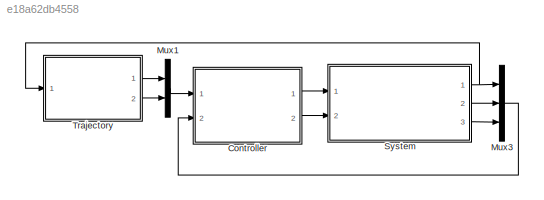
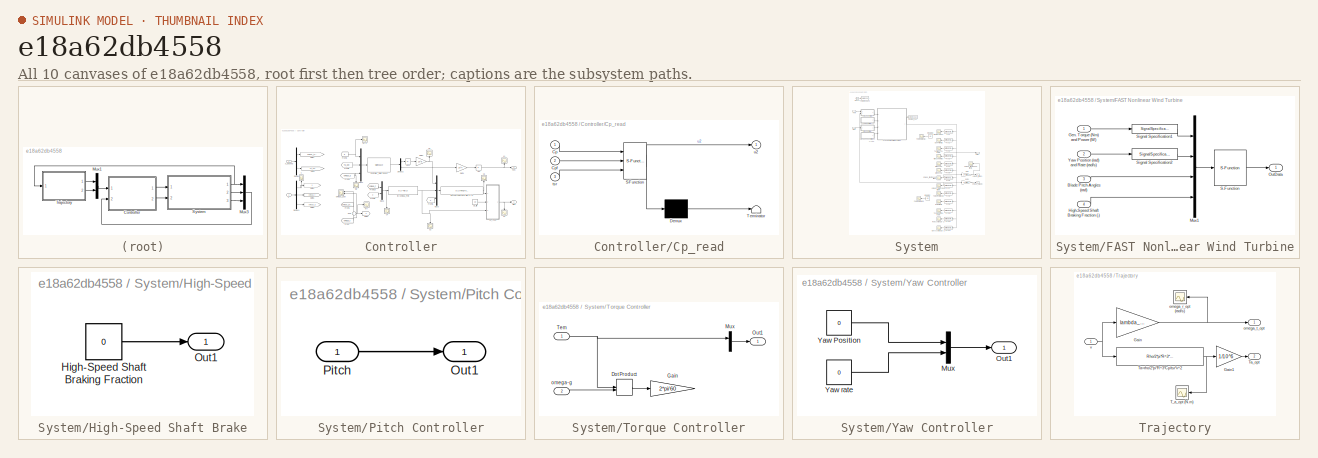
[diagram: thumbnail index - all 10 canvases of the model, root first then tree order]
MODEL slx_e18a62db4558
KIND model
CONFIG AbsTol = auto
CONFIG FixedStep = 0.0001
CONFIG MaxStep = auto
CONFIG MinStep = auto
CONFIG RelTol = 1e-6
CONFIG SampleTimeConstraint = Unconstrained
CONFIG Solver = VariableStepAuto
CONFIG SolverMode = Auto
CONFIG SolverName = VariableStepAuto
CONFIG StartTime = 0.0
CONFIG StopTime = 100
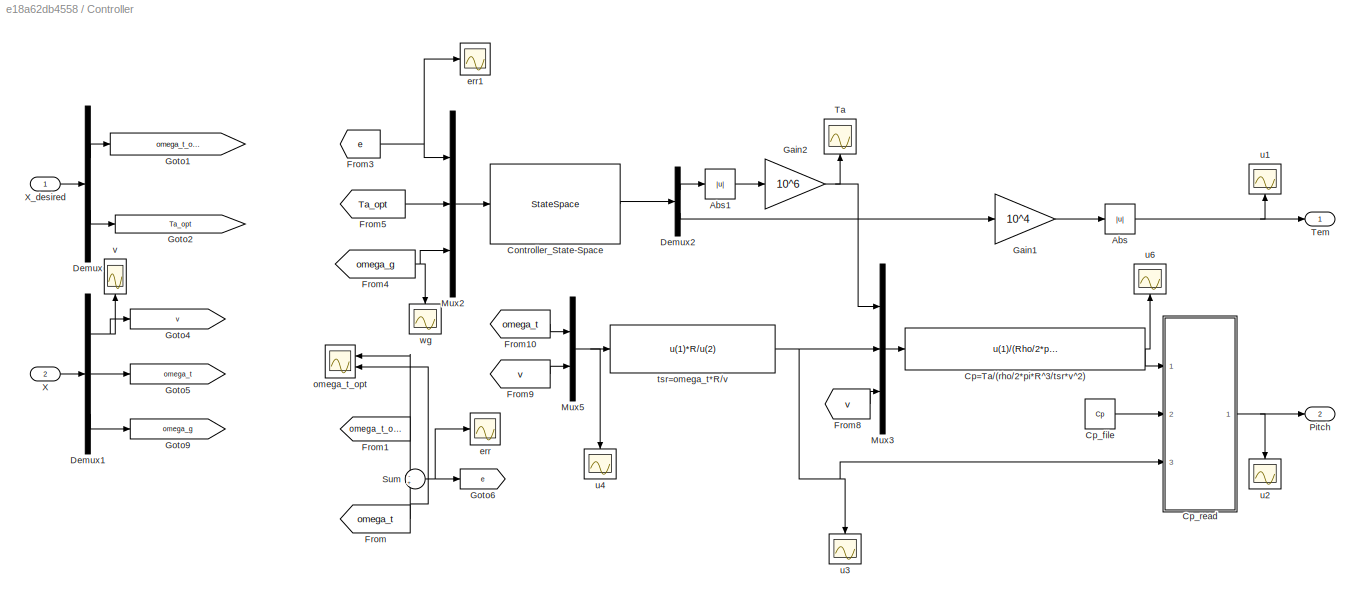
BLOCK [SubSystem] Controller
  Ports = [2, 2]
  RequestExecContextInheritance = off
  Variant = off
BLOCK [Abs] Controller/Abs
  SaturateOnIntegerOverflow = off
BLOCK [Abs] Controller/Abs1
  SaturateOnIntegerOverflow = off
BLOCK [StateSpace] Controller/Controller_State-Space
  A = A
  B = B
  C = C
  D = D
  Ports = [1, 1]
  X0 = 0
BLOCK [Fcn] Controller/Cp=Ta//(rho//2*pi*R^3//tsr*v^2)
  Expr = u(1)/(Rho/2*pi*R^3/u(2)*u(3)^2)
BLOCK [Constant] Controller/Cp_file
  Value = Cp
BLOCK [SubSystem] Controller/Cp_read
  ErrorFcn = Stateflow.Translate.translate
  PermitHierarchicalResolution = ExplicitOnly
  Ports = [3, 1]
  RequestExecContextInheritance = off
  SFBlockType = MATLAB Function
  TreatAsAtomicUnit = on
  Variant = off
BLOCK [Demux] Controller/Cp_read/ Demux 
  Outputs = 1
  Ports = [1, 1]
BLOCK [S-Function] Controller/Cp_read/ SFunction 
  EnableBusSupport = on
  FunctionName = sf_sfun
  PortCounts = [3 2]
  Ports = [3, 2]
  SFunctionDeploymentMode = off
  Tag = Stateflow S-Function Closedloop 1
BLOCK [Terminator] Controller/Cp_read/ Terminator 
BLOCK [Inport] Controller/Cp_read/Cp
  IconDisplay = Port number
BLOCK [Inport] Controller/Cp_read/Cpf
  IconDisplay = Port number
  Port = 2
BLOCK [Inport] Controller/Cp_read/tsr
  IconDisplay = Port number
  Port = 3
BLOCK [Outport] Controller/Cp_read/u2
  IconDisplay = Port number
BLOCK [Demux] Controller/Demux
  DisplayOption = bar
  Outputs = 2
  Ports = [1, 2]
BLOCK [Demux] Controller/Demux1
  DisplayOption = bar
  Outputs = 3
  Ports = [1, 3]
BLOCK [Demux] Controller/Demux2
  DisplayOption = bar
  Outputs = 2
  Ports = [1, 2]
BLOCK [From] Controller/From
  GotoTag = omega_t
BLOCK [From] Controller/From1
  GotoTag = omega_t_opt
BLOCK [From] Controller/From10
  GotoTag = omega_t
BLOCK [From] Controller/From3
  GotoTag = e
BLOCK [From] Controller/From4
  GotoTag = omega_g
BLOCK [From] Controller/From5
  GotoTag = Ta_opt
BLOCK [From] Controller/From8
  GotoTag = v
BLOCK [From] Controller/From9
  GotoTag = v
BLOCK [Gain] Controller/Gain1
  Gain = 10^4
  OutDataTypeStr = Inherit: Inherit via internal rule
  ParamDataTypeStr = Inherit: Inherit via internal rule
  SaturateOnIntegerOverflow = off
BLOCK [Gain] Controller/Gain2
  Gain = 10^6
  OutDataTypeStr = Inherit: Inherit via internal rule
  ParamDataTypeStr = Inherit: Inherit via internal rule
  SaturateOnIntegerOverflow = off
BLOCK [Goto] Controller/Goto1
  GotoTag = omega_t_opt
BLOCK [Goto] Controller/Goto2
  GotoTag = Ta_opt
BLOCK [Goto] Controller/Goto4
  GotoTag = v
BLOCK [Goto] Controller/Goto5
  GotoTag = omega_t
BLOCK [Goto] Controller/Goto6
  GotoTag = e
BLOCK [Goto] Controller/Goto9
  GotoTag = omega_g
BLOCK [Mux] Controller/Mux2
  DisplayOption = bar
  Inputs = 3
  Ports = [3, 1]
BLOCK [Mux] Controller/Mux3
  DisplayOption = bar
  Inputs = 3
  Ports = [3, 1]
BLOCK [Mux] Controller/Mux5
  DisplayOption = bar
  Inputs = 2
  Ports = [2, 1]
BLOCK [Outport] Controller/Pitch
  IconDisplay = Port number
  Port = 2
BLOCK [Sum] Controller/Sum
  IconShape = round
  InputSameDT = off
  Inputs = -+
  OutDataTypeStr = Inherit: Inherit via internal rule
  Ports = [2, 1]
  SaturateOnIntegerOverflow = off
BLOCK [Scope] Controller/Ta
  Ports = [1]
  ScopeSpecificationString = Simulink.scopes.TimeScopeBlockCfg('CurrentConfiguration', extmgr.ConfigurationSet(extmgr.Configuration('Core','General UI',true,'FigureColor',[1 1 1]),extmgr.Configuration('Core','Source UI',true),extmgr.Configuration('Sources','WiredSimulink',true,'DataLoggingSaveFormat','StructureWithTime','DataLoggingDecimation','1','DataLoggingDecimateData',true,'DataLoggingVariableName','ScopeData2'),extmgr.C...<+2193ch>
BLOCK [Outport] Controller/Tem
  IconDisplay = Port number
BLOCK [Inport] Controller/X
  IconDisplay = Port number
  Port = 2
BLOCK [Inport] Controller/X_desired
  IconDisplay = Port number
BLOCK [Scope] Controller/err
  Ports = [1]
  ScopeSpecificationString = Simulink.scopes.TimeScopeBlockCfg('CurrentConfiguration', extmgr.ConfigurationSet(extmgr.Configuration('Core','General UI',true,'FigureColor',[1 1 1]),extmgr.Configuration('Core','Source UI',true),extmgr.Configuration('Sources','WiredSimulink',true,'DataLoggingSaveFormat','StructureWithTime','DataLoggingDecimation','1','DataLoggingDecimateData',true,'DataLoggingVariableName','ScopeData3'),extmgr.C...<+2134ch>
BLOCK [Scope] Controller/err1
  Ports = [1]
  ScopeSpecificationString = Simulink.scopes.TimeScopeBlockCfg('CurrentConfiguration', extmgr.ConfigurationSet(extmgr.Configuration('Core','General UI',true,'FigureColor',[1 1 1]),extmgr.Configuration('Core','Source UI',true),extmgr.Configuration('Sources','WiredSimulink',true,'DataLoggingSaveFormat','StructureWithTime','DataLoggingDecimation','1','DataLoggingDecimateData',true,'DataLoggingVariableName','ScopeData2'),extmgr.C...<+2134ch>
BLOCK [Scope] Controller/omega_t_opt
  NumInputPorts = 2
  Ports = [2]
  ScopeSpecificationString = Simulink.scopes.TimeScopeBlockCfg('CurrentConfiguration', extmgr.ConfigurationSet(extmgr.Configuration('Core','General UI',true,'FigureColor',[1 1 1]),extmgr.Configuration('Core','Source UI',true),extmgr.Configuration('Sources','WiredSimulink',true,'DataLoggingVariableName','ScopeData2','DataLoggingSaveFormat','Array','DataLoggingDecimation','1','DataLoggingDecimateData',true),extmgr.Configuration...<+2068ch>
BLOCK [Fcn] Controller/tsr=omega_t*R//v
  Expr = u(1)*R/u(2)
BLOCK [Scope] Controller/u1
  Ports = [1]
  ScopeSpecificationString = Simulink.scopes.TimeScopeBlockCfg('CurrentConfiguration', extmgr.ConfigurationSet(extmgr.Configuration('Core','General UI',true,'FigureColor',[1 1 1]),extmgr.Configuration('Core','Source UI',true),extmgr.Configuration('Sources','WiredSimulink',true,'DataLoggingSaveFormat','StructureWithTime','DataLoggingDecimation','1','DataLoggingDecimateData',true,'DataLoggingVariableName','ScopeData3'),extmgr.C...<+2148ch>
BLOCK [Scope] Controller/u2
  Ports = [1]
  ScopeSpecificationString = Simulink.scopes.TimeScopeBlockCfg('CurrentConfiguration', extmgr.ConfigurationSet(extmgr.Configuration('Core','General UI',true,'FigureColor',[1 1 1]),extmgr.Configuration('Core','Source UI',true),extmgr.Configuration('Sources','WiredSimulink',true,'DataLoggingSaveFormat','StructureWithTime','DataLoggingDecimation','1','DataLoggingDecimateData',true,'DataLoggingVariableName','ScopeData1'),extmgr.C...<+2186ch>
BLOCK [Scope] Controller/u3
  Ports = [1]
  ScopeSpecificationString = Simulink.scopes.TimeScopeBlockCfg('CurrentConfiguration', extmgr.ConfigurationSet(extmgr.Configuration('Core','General UI',true),extmgr.Configuration('Core','Source UI',true),extmgr.Configuration('Sources','WiredSimulink',true,'DataLoggingVariableName','ScopeData1'),extmgr.Configuration('Visuals','Time Domain',true,'SerializedDisplays',{struct('MinYLimReal','7.26839','MaxYLimReal','10.83018','YLab...<+1401ch>
BLOCK [Scope] Controller/u4
  Ports = [1]
  ScopeSpecificationString = Simulink.scopes.TimeScopeBlockCfg('CurrentConfiguration', extmgr.ConfigurationSet(extmgr.Configuration('Core','General UI',true),extmgr.Configuration('Core','Source UI',true),extmgr.Configuration('Sources','WiredSimulink',true,'DataLoggingVariableName','ScopeData2'),extmgr.Configuration('Visuals','Time Domain',true,'SerializedDisplays',{struct('MinYLimReal','0.84053','MaxYLimReal','7.68439','YLabe...<+1430ch>
BLOCK [Scope] Controller/u6
  Ports = [1]
  ScopeSpecificationString = Simulink.scopes.TimeScopeBlockCfg('CurrentConfiguration', extmgr.ConfigurationSet(extmgr.Configuration('Core','General UI',true),extmgr.Configuration('Core','Source UI',true),extmgr.Configuration('Sources','WiredSimulink',true,'DataLoggingVariableName','ScopeData2'),extmgr.Configuration('Visuals','Time Domain',true,'SerializedDisplays',{struct('MinYLimReal','-22.38184','MaxYLimReal','8.39743','YLa...<+1445ch>
BLOCK [Scope] Controller/v
  Ports = [1]
  ScopeSpecificationString = Simulink.scopes.TimeScopeBlockCfg('CurrentConfiguration', extmgr.ConfigurationSet(extmgr.Configuration('Core','General UI',true,'FigureColor',[1 1 1]),extmgr.Configuration('Core','Source UI',true),extmgr.Configuration('Sources','WiredSimulink',true,'DataLoggingSaveFormat','StructureWithTime','DataLoggingDecimation','1','DataLoggingDecimateData',true,'DataLoggingVariableName','ScopeData2'),extmgr.C...<+1810ch>
BLOCK [Scope] Controller/wg
  Ports = [1]
  ScopeSpecificationString = Simulink.scopes.TimeScopeBlockCfg('CurrentConfiguration', extmgr.ConfigurationSet(extmgr.Configuration('Core','General UI',true),extmgr.Configuration('Core','Source UI',true),extmgr.Configuration('Sources','WiredSimulink',true,'DataLoggingVariableName','ScopeData3'),extmgr.Configuration('Visuals','Time Domain',true,'SerializedDisplays',{struct('MinYLimReal','-72.1723','MaxYLimReal','212.72299','YL...<+1792ch>
BLOCK [Mux] Mux1
  DisplayOption = bar
  Inputs = 2
  Ports = [2, 1]
BLOCK [Mux] Mux3
  DisplayOption = bar
  Inputs = 3
  Ports = [3, 1]
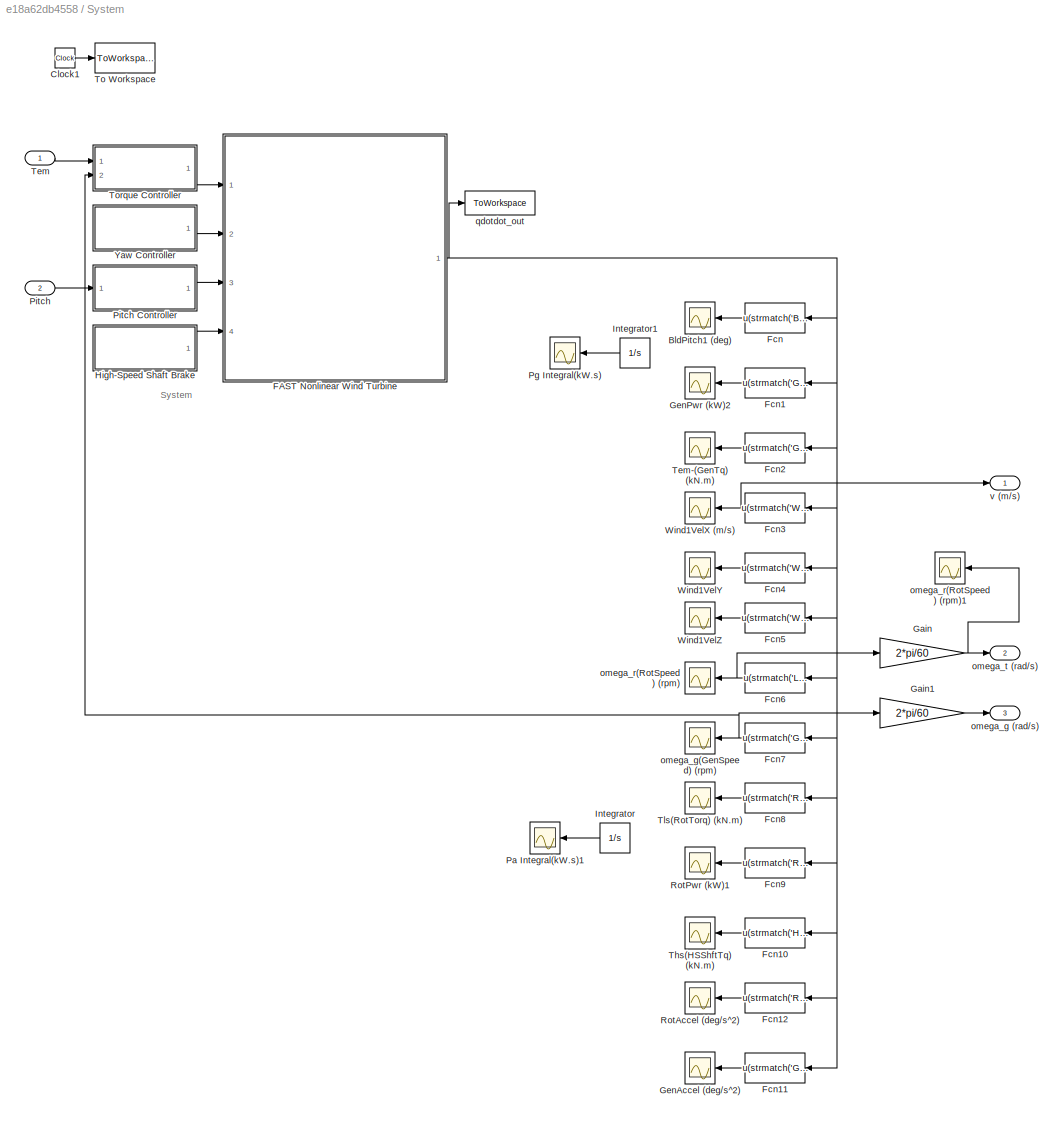
BLOCK [SubSystem] System
  Ports = [2, 3]
  RequestExecContextInheritance = off
  Variant = off
BLOCK [Scope] System/BldPitch1 (deg)
  Ports = [1]
  ScopeSpecificationString = Simulink.scopes.TimeScopeBlockCfg('CurrentConfiguration', extmgr.ConfigurationSet(extmgr.Configuration('Core','General UI',true,'FigureColor',[1 1 1]),extmgr.Configuration('Core','Source UI',true),extmgr.Configuration('Sources','WiredSimulink',true,'DataLoggingSaveFormat','StructureWithTime','DataLoggingDecimation','1','DataLoggingDecimateData',true,'DataLoggingVariableName','ScopeData5'),extmgr.C...<+2092ch>
BLOCK [Clock] System/Clock1
BLOCK [SubSystem] System/FAST Nonlinear Wind Turbine
  Ports = [4, 1]
  RequestExecContextInheritance = off
  Variant = off
BLOCK [Inport] System/FAST Nonlinear Wind Turbine/Blade Pitch Angles (rad)
  IconDisplay = Port number
  Port = 3
BLOCK [Inport] System/FAST Nonlinear Wind Turbine/Gen. Torque (Nm) and Power (W)
  IconDisplay = Port number
BLOCK [Inport] System/FAST Nonlinear Wind Turbine/High-Speed Shaft Braking Fraction (-)
  IconDisplay = Port number
  Port = 4
BLOCK [Mux] System/FAST Nonlinear Wind Turbine/Mux1
  DisplayOption = bar
  Ports = [4, 1]
BLOCK [Outport] System/FAST Nonlinear Wind Turbine/OutData
  IconDisplay = Port number
BLOCK [S-Function] System/FAST Nonlinear Wind Turbine/S-Function
  EnableBusSupport = off
  FunctionName = FAST_SFunc
  Parameters = FAST_InputFileName, TMax, 0
  Ports = [1, 1]
  SFunctionDeploymentMode = off
BLOCK [SignalSpecification] System/FAST Nonlinear Wind Turbine/Signal Specification1
  Dimensions = 2
  OutDataTypeStr = double
  SignalType = real
BLOCK [SignalSpecification] System/FAST Nonlinear Wind Turbine/Signal Specification2
  Dimensions = 2
  OutDataTypeStr = double
  SignalType = real
BLOCK [Inport] System/FAST Nonlinear Wind Turbine/Yaw Position (rad) and Rate (rad//s)
  IconDisplay = Port number
  Port = 2
BLOCK [Fcn] System/Fcn
  Expr = u(strmatch('BldPitch1',OutList))
BLOCK [Fcn] System/Fcn1
  Expr = u(strmatch('GenPwr',OutList))
BLOCK [Fcn] System/Fcn10
  Expr = u(strmatch('HSShftTq',OutList))
BLOCK [Fcn] System/Fcn11
  Expr = u(strmatch('GenAccel',OutList))
BLOCK [Fcn] System/Fcn12
  Expr = u(strmatch('RotAccel',OutList))
BLOCK [Fcn] System/Fcn2
  Expr = u(strmatch('GenTq',OutList))
BLOCK [Fcn] System/Fcn3
  Expr = u(strmatch('Wind1VelX',OutList))
BLOCK [Fcn] System/Fcn4
  Expr = u(strmatch('Wind1VelY',OutList))
BLOCK [Fcn] System/Fcn5
  Expr = u(strmatch('Wind1VelZ',OutList))
BLOCK [Fcn] System/Fcn6
  Expr = u(strmatch('LSSTipVxa',OutList))
BLOCK [Fcn] System/Fcn7
  Expr = u(strmatch('GenSpeed',OutList))
BLOCK [Fcn] System/Fcn8
  Expr = u(strmatch('RotTorq',OutList))
BLOCK [Fcn] System/Fcn9
  Expr = u(strmatch('RotPwr',OutList))
BLOCK [Gain] System/Gain
  Gain = 2*pi/60
  OutDataTypeStr = Inherit: Inherit via internal rule
  ParamDataTypeStr = Inherit: Inherit via internal rule
  SaturateOnIntegerOverflow = off
BLOCK [Gain] System/Gain1
  Gain = 2*pi/60
  OutDataTypeStr = Inherit: Inherit via internal rule
  ParamDataTypeStr = Inherit: Inherit via internal rule
  SaturateOnIntegerOverflow = off
BLOCK [Scope] System/GenAccel (deg//s^2)
  Ports = [1]
  ScopeSpecificationString = Simulink.scopes.TimeScopeBlockCfg('CurrentConfiguration', extmgr.ConfigurationSet(extmgr.Configuration('Core','General UI',true),extmgr.Configuration('Core','Source UI',true),extmgr.Configuration('Sources','WiredSimulink',true,'DataLoggingSaveFormat','StructureWithTime','DataLoggingDecimation','1','DataLoggingDecimateData',true,'DataLoggingVariableName','ScopeData2'),extmgr.Configuration('Visuals'...<+1955ch>
BLOCK [Scope] System/GenPwr (kW)2
  Ports = [1]
  ScopeSpecificationString = Simulink.scopes.TimeScopeBlockCfg('CurrentConfiguration', extmgr.ConfigurationSet(extmgr.Configuration('Core','General UI',true,'FigureColor',[1 1 1]),extmgr.Configuration('Core','Source UI',true),extmgr.Configuration('Sources','WiredSimulink',true,'DataLoggingSaveFormat','StructureWithTime','DataLoggingDecimation','1','DataLoggingDecimateData',true,'DataLoggingVariableName','ScopeData7'),extmgr.C...<+1853ch>
BLOCK [SubSystem] System/High-Speed Shaft Brake
  Ports = [0, 1]
  RequestExecContextInheritance = off
  Variant = off
BLOCK [Constant] System/High-Speed Shaft Brake/High-Speed Shaft Braking Fraction
  Value = 0
BLOCK [Outport] System/High-Speed Shaft Brake/Out1
  IconDisplay = Port number
BLOCK [Integrator] System/Integrator
  Ports = [1, 1]
BLOCK [Integrator] System/Integrator1
  Ports = [1, 1]
BLOCK [Scope] System/Pa Integral(kW.s)1
  Ports = [1]
  ScopeSpecificationString = Simulink.scopes.TimeScopeBlockCfg('CurrentConfiguration', extmgr.ConfigurationSet(extmgr.Configuration('Core','General UI',true,'FigureColor',[1 1 1]),extmgr.Configuration('Core','Source UI',true),extmgr.Configuration('Sources','WiredSimulink',true,'DataLoggingSaveFormat','StructureWithTime','DataLoggingDecimation','1','DataLoggingDecimateData',true,'DataLoggingVariableName','ScopeData1'),extmgr.C...<+2147ch>
BLOCK [Scope] System/Pg Integral(kW.s)
  Ports = [1]
  ScopeSpecificationString = Simulink.scopes.TimeScopeBlockCfg('CurrentConfiguration', extmgr.ConfigurationSet(extmgr.Configuration('Core','General UI',true,'FigureColor',[1 1 1]),extmgr.Configuration('Core','Source UI',true),extmgr.Configuration('Sources','WiredSimulink',true,'DataLoggingSaveFormat','StructureWithTime','DataLoggingDecimation','1','DataLoggingDecimateData',true,'DataLoggingVariableName','ScopeData3'),extmgr.C...<+2185ch>
BLOCK [Inport] System/Pitch
  IconDisplay = Port number
  Port = 2
BLOCK [SubSystem] System/Pitch Controller
  Ports = [1, 1]
  RequestExecContextInheritance = off
  Variant = off
BLOCK [Outport] System/Pitch Controller/Out1
  IconDisplay = Port number
BLOCK [Inport] System/Pitch Controller/Pitch
  IconDisplay = Port number
BLOCK [Scope] System/RotAccel (deg//s^2)
  Ports = [1]
  ScopeSpecificationString = Simulink.scopes.TimeScopeBlockCfg('CurrentConfiguration', extmgr.ConfigurationSet(extmgr.Configuration('Core','General UI',true),extmgr.Configuration('Core','Source UI',true),extmgr.Configuration('Sources','WiredSimulink',true,'DataLoggingSaveFormat','StructureWithTime','DataLoggingLimitDataPoints',true,'DataLoggingDecimation','1','DataLoggingDecimateData',true,'DataLoggingVariableName','ScopeData...<+2011ch>
BLOCK [Scope] System/RotPwr (kW)1
  Ports = [1]
  ScopeSpecificationString = Simulink.scopes.TimeScopeBlockCfg('CurrentConfiguration', extmgr.ConfigurationSet(extmgr.Configuration('Core','General UI',true,'FigureColor',[1 1 1]),extmgr.Configuration('Core','Source UI',true),extmgr.Configuration('Sources','WiredSimulink',true,'DataLoggingSaveFormat','StructureWithTime','DataLoggingDecimation','1','DataLoggingDecimateData',true,'DataLoggingVariableName','ScopeData4'),extmgr.C...<+1847ch>
BLOCK [Inport] System/Tem
  IconDisplay = Port number
BLOCK [Scope] System/Tem-(GenTq) (kN.m)
  Ports = [1]
  ScopeSpecificationString = Simulink.scopes.TimeScopeBlockCfg('CurrentConfiguration', extmgr.ConfigurationSet(extmgr.Configuration('Core','General UI',true),extmgr.Configuration('Core','Source UI',true),extmgr.Configuration('Sources','WiredSimulink',true,'DataLoggingSaveFormat','StructureWithTime','DataLoggingDecimation','1','DataLoggingDecimateData',true,'DataLoggingVariableName','ScopeData8'),extmgr.Configuration('Visuals'...<+2000ch>
BLOCK [Scope] System/Ths(HSShftTq) (kN.m)
  Ports = [1]
  ScopeSpecificationString = Simulink.scopes.TimeScopeBlockCfg('CurrentConfiguration', extmgr.ConfigurationSet(extmgr.Configuration('Core','General UI',true),extmgr.Configuration('Core','Source UI',true),extmgr.Configuration('Sources','WiredSimulink',true,'DataLoggingSaveFormat','StructureWithTime','DataLoggingDecimation','1','DataLoggingDecimateData',true,'DataLoggingVariableName','ScopeData9'),extmgr.Configuration('Visuals'...<+2003ch>
BLOCK [Scope] System/Tls(RotTorq) (kN.m)
  Ports = [1]
  ScopeSpecificationString = Simulink.scopes.TimeScopeBlockCfg('CurrentConfiguration', extmgr.ConfigurationSet(extmgr.Configuration('Core','General UI',true),extmgr.Configuration('Core','Source UI',true),extmgr.Configuration('Sources','WiredSimulink',true,'DataLoggingSaveFormat','StructureWithTime','DataLoggingDecimation','1','DataLoggingDecimateData',true,'DataLoggingVariableName','ScopeData10'),extmgr.Configuration('Visuals...<+2034ch>
BLOCK [ToWorkspace] System/To Workspace
  MaxDataPoints = inf
  Ports = [1]
  SampleTime = -1
  VariableName = Time
BLOCK [SubSystem] System/Torque Controller
  Ports = [2, 1]
  RequestExecContextInheritance = off
  Variant = off
BLOCK [DotProduct] System/Torque Controller/Dot Product
  OutDataTypeStr = Inherit: Inherit via internal rule
BLOCK [Gain] System/Torque Controller/Gain
  Gain = 2*pi/60
  OutDataTypeStr = Inherit: Inherit via internal rule
  ParamDataTypeStr = Inherit: Inherit via internal rule
  SaturateOnIntegerOverflow = off
BLOCK [Mux] System/Torque Controller/Mux
  DisplayOption = bar
  Inputs = 2
  Ports = [2, 1]
BLOCK [Outport] System/Torque Controller/Out1
  IconDisplay = Port number
BLOCK [Inport] System/Torque Controller/Tem
  IconDisplay = Port number
BLOCK [Inport] System/Torque Controller/omega-g
  IconDisplay = Port number
  Port = 2
BLOCK [Scope] System/Wind1VelX (m//s)
  Ports = [1]
  ScopeSpecificationString = Simulink.scopes.TimeScopeBlockCfg('CurrentConfiguration', extmgr.ConfigurationSet(extmgr.Configuration('Core','General UI',true,'FigureColor',[1 1 1]),extmgr.Configuration('Core','Source UI',true),extmgr.Configuration('Sources','WiredSimulink',true,'DataLoggingSaveFormat','StructureWithTime','DataLoggingDecimation','1','DataLoggingDecimateData',true,'DataLoggingVariableName','ScopeData11'),extmgr....<+1688ch>
BLOCK [Scope] System/Wind1VelY
  Ports = [1]
  ScopeSpecificationString = Simulink.scopes.TimeScopeBlockCfg('CurrentConfiguration', extmgr.ConfigurationSet(extmgr.Configuration('Core','General UI',true),extmgr.Configuration('Core','Source UI',true),extmgr.Configuration('Sources','WiredSimulink',true,'DataLoggingSaveFormat','StructureWithTime','DataLoggingLimitDataPoints',true,'DataLoggingDecimation','1','DataLoggingDecimateData',true,'DataLoggingVariableName','ScopeData...<+1723ch>
BLOCK [Scope] System/Wind1VelZ
  Ports = [1]
  ScopeSpecificationString = Simulink.scopes.TimeScopeBlockCfg('CurrentConfiguration', extmgr.ConfigurationSet(extmgr.Configuration('Core','General UI',true),extmgr.Configuration('Core','Source UI',true),extmgr.Configuration('Sources','WiredSimulink',true,'DataLoggingSaveFormat','StructureWithTime','DataLoggingLimitDataPoints',true,'DataLoggingDecimation','1','DataLoggingDecimateData',true,'DataLoggingVariableName','ScopeData...<+1723ch>
BLOCK [SubSystem] System/Yaw Controller
  Ports = [0, 1]
  RequestExecContextInheritance = off
  Variant = off
BLOCK [Mux] System/Yaw Controller/Mux
  DisplayOption = bar
  Inputs = 2
  Ports = [2, 1]
BLOCK [Outport] System/Yaw Controller/Out1
  IconDisplay = Port number
BLOCK [Constant] System/Yaw Controller/Yaw Position
  Value = 0
BLOCK [Constant] System/Yaw Controller/Yaw rate
  Value = 0
BLOCK [Outport] System/omega_g (rad//s)
  IconDisplay = Port number
  Port = 3
BLOCK [Scope] System/omega_g(GenSpeed) (rpm)
  Ports = [1]
  ScopeSpecificationString = Simulink.scopes.TimeScopeBlockCfg('CurrentConfiguration', extmgr.ConfigurationSet(extmgr.Configuration('Core','General UI',true),extmgr.Configuration('Core','Source UI',true),extmgr.Configuration('Sources','WiredSimulink',true,'DataLoggingSaveFormat','StructureWithTime','DataLoggingDecimation','1','DataLoggingDecimateData',true,'DataLoggingVariableName','ScopeData14'),extmgr.Configuration('Visuals...<+2008ch>
BLOCK [Scope] System/omega_r(RotSpeed) (rpm)
  Ports = [1]
  ScopeSpecificationString = Simulink.scopes.TimeScopeBlockCfg('CurrentConfiguration', extmgr.ConfigurationSet(extmgr.Configuration('Core','General UI',true),extmgr.Configuration('Core','Source UI',true),extmgr.Configuration('Sources','WiredSimulink',true,'DataLoggingSaveFormat','StructureWithTime','DataLoggingDecimation','1','DataLoggingDecimateData',true),extmgr.Configuration('Visuals','Time Domain',true,'SerializedDisplays...<+1941ch>
BLOCK [Scope] System/omega_r(RotSpeed) (rpm)1
  Ports = [1]
  ScopeSpecificationString = Simulink.scopes.TimeScopeBlockCfg('CurrentConfiguration', extmgr.ConfigurationSet(extmgr.Configuration('Core','General UI',true,'FigureColor',[1 1 1]),extmgr.Configuration('Core','Source UI',true),extmgr.Configuration('Sources','WiredSimulink',true,'DataLoggingSaveFormat','StructureWithTime','DataLoggingDecimation','1','DataLoggingDecimateData',true,'DataLoggingVariableName','ScopeData1'),extmgr.C...<+2122ch>
BLOCK [Outport] System/omega_t (rad//s)
  IconDisplay = Port number
  Port = 2
BLOCK [ToWorkspace] System/qdotdot_out
  MaxDataPoints = inf
  Ports = [1]
  SampleTime = -1
  VariableName = OutData
BLOCK [Outport] System/v (m//s)
  IconDisplay = Port number
BLOCK [SubSystem] Trajectory
  Ports = [1, 2]
  RequestExecContextInheritance = off
  Variant = off
BLOCK [Gain] Trajectory/Gain
  Gain = lambda_opt/R
  OutDataTypeStr = Inherit: Inherit via internal rule
  ParamDataTypeStr = Inherit: Inherit via internal rule
  SaturateOnIntegerOverflow = off
BLOCK [Gain] Trajectory/Gain1
  Gain = 1/10^6
  OutDataTypeStr = Inherit: Inherit via internal rule
  ParamDataTypeStr = Inherit: Inherit via internal rule
  SaturateOnIntegerOverflow = off
BLOCK [Scope] Trajectory/T_a_opt (N.m)
  Ports = [1]
  ScopeSpecificationString = Simulink.scopes.TimeScopeBlockCfg('CurrentConfiguration', extmgr.ConfigurationSet(extmgr.Configuration('Core','General UI',true),extmgr.Configuration('Core','Source UI',true),extmgr.Configuration('Sources','WiredSimulink',true,'DataLoggingVariableName','ScopeData1'),extmgr.Configuration('Visuals','Time Domain',true,'SerializedDisplays',{struct('MinYLimReal','176545.07822','MaxYLimReal','376545.078...<+1722ch>
BLOCK [Fcn] Trajectory/Ta=rho//2*pi*R^3*Cp//tsr*v^2
  Expr = Rho/2*pi*R^3*0.4857/7.1*u(1)^2
BLOCK [Outport] Trajectory/Ta_opt
  IconDisplay = Port number
  Port = 2
BLOCK [Scope] Trajectory/omega_r_opt (rad//s)
  Ports = [1]
  ScopeSpecificationString = Simulink.scopes.TimeScopeBlockCfg('CurrentConfiguration', extmgr.ConfigurationSet(extmgr.Configuration('Core','General UI',true),extmgr.Configuration('Core','Source UI',true),extmgr.Configuration('Sources','WiredSimulink',true,'DataLoggingSaveFormat','StructureWithTime','DataLoggingDecimation','1','DataLoggingDecimateData',true,'DataLoggingVariableName','ScopeData12'),extmgr.Configuration('Visuals...<+1953ch>
BLOCK [Outport] Trajectory/omega_t_opt
  IconDisplay = Port number
BLOCK [Inport] Trajectory/v
  IconDisplay = Port number
ANNOTATION System: System
LINE Controller/Abs1:1 -> Controller/Gain2:1
NET Controller/Abs:1 -> Controller/Tem:1, Controller/u1:1
LINE Controller/Controller_State-Space:1 -> Controller/Demux2:1
NET Controller/Cp=Ta//(rho//2*pi*R^3//tsr*v^2):1 -> Controller/Cp_read:1, Controller/u6:1
LINE Controller/Cp_file:1 -> Controller/Cp_read:2
NET Controller/Cp_read:1 -> Controller/Pitch:1, Controller/u2:1
NET Controller/Demux1:1 -> Controller/Goto4:1, Controller/v:1
LINE Controller/Demux1:2 -> Controller/Goto5:1
LINE Controller/Demux1:3 -> Controller/Goto9:1
LINE Controller/Demux2:1 -> Controller/Abs1:1
LINE Controller/Demux2:2 -> Controller/Gain1:1
LINE Controller/Demux:1 -> Controller/Goto1:1
LINE Controller/Demux:2 -> Controller/Goto2:1
LINE Controller/From10:1 -> Controller/Mux5:1
NET Controller/From1:1 -> Controller/Sum:1, Controller/omega_t_opt:1
NET Controller/From3:1 -> Controller/Mux2:1, Controller/err1:1
NET Controller/From4:1 -> Controller/Mux2:3, Controller/wg:1
LINE Controller/From5:1 -> Controller/Mux2:2
LINE Controller/From8:1 -> Controller/Mux3:3
LINE Controller/From9:1 -> Controller/Mux5:2
NET Controller/From:1 -> Controller/Sum:2, Controller/omega_t_opt:2
LINE Controller/Gain1:1 -> Controller/Abs:1
NET Controller/Gain2:1 -> Controller/Mux3:1, Controller/Ta:1
LINE Controller/Mux2:1 -> Controller/Controller_State-Space:1
LINE Controller/Mux3:1 -> Controller/Cp=Ta//(rho//2*pi*R^3//tsr*v^2):1
NET Controller/Mux5:1 -> Controller/tsr=omega_t*R//v:1, Controller/u4:1
NET Controller/Sum:1 -> Controller/Goto6:1, Controller/err:1
LINE Controller/X:1 -> Controller/Demux1:1
LINE Controller/X_desired:1 -> Controller/Demux:1
NET Controller/tsr=omega_t*R//v:1 -> Controller/Cp_read:3, Controller/Mux3:2, Controller/u3:1
LINE Controller:1 -> System:1
LINE Controller:2 -> System:2
LINE Mux1:1 -> Controller:1
LINE Mux3:1 -> Controller:2
LINE System/Clock1:1 -> System/To Workspace:1
LINE System/FAST Nonlinear Wind Turbine/Blade Pitch Angles (rad):1 -> System/FAST Nonlinear Wind Turbine/Mux1:3
LINE System/FAST Nonlinear Wind Turbine/Gen. Torque (Nm) and Power (W):1 -> System/FAST Nonlinear Wind Turbine/Signal Specification1:1
LINE System/FAST Nonlinear Wind Turbine/High-Speed Shaft Braking Fraction (-):1 -> System/FAST Nonlinear Wind Turbine/Mux1:4
LINE System/FAST Nonlinear Wind Turbine/Mux1:1 -> System/FAST Nonlinear Wind Turbine/S-Function:1
LINE System/FAST Nonlinear Wind Turbine/S-Function:1 -> System/FAST Nonlinear Wind Turbine/OutData:1
LINE System/FAST Nonlinear Wind Turbine/Signal Specification1:1 -> System/FAST Nonlinear Wind Turbine/Mux1:1
LINE System/FAST Nonlinear Wind Turbine/Signal Specification2:1 -> System/FAST Nonlinear Wind Turbine/Mux1:2
LINE System/FAST Nonlinear Wind Turbine/Yaw Position (rad) and Rate (rad//s):1 -> System/FAST Nonlinear Wind Turbine/Signal Specification2:1
NET System/FAST Nonlinear Wind Turbine:1 -> System/Fcn10:1, System/Fcn11:1, System/Fcn12:1, System/Fcn1:1, System/Fcn2:1, System/Fcn3:1, System/Fcn4:1, System/Fcn5:1, System/Fcn6:1, System/Fcn7:1, System/Fcn8:1, System/Fcn9:1, System/Fcn:1, System/qdotdot_out:1
LINE System/Fcn10:1 -> System/Ths(HSShftTq) (kN.m):1
LINE System/Fcn11:1 -> System/GenAccel (deg//s^2):1
LINE System/Fcn12:1 -> System/RotAccel (deg//s^2):1
LINE System/Fcn1:1 -> System/GenPwr (kW)2:1
LINE System/Fcn2:1 -> System/Tem-(GenTq) (kN.m):1
NET System/Fcn3:1 -> System/Wind1VelX (m//s):1, System/v (m//s):1
LINE System/Fcn4:1 -> System/Wind1VelY:1
LINE System/Fcn5:1 -> System/Wind1VelZ:1
NET System/Fcn6:1 -> System/Gain:1, System/omega_r(RotSpeed) (rpm):1
NET System/Fcn7:1 -> System/Gain1:1, System/Torque Controller:2, System/omega_g(GenSpeed) (rpm):1
LINE System/Fcn8:1 -> System/Tls(RotTorq) (kN.m):1
LINE System/Fcn9:1 -> System/RotPwr (kW)1:1
LINE System/Fcn:1 -> System/BldPitch1 (deg):1
LINE System/Gain1:1 -> System/omega_g (rad//s):1
NET System/Gain:1 -> System/omega_r(RotSpeed) (rpm)1:1, System/omega_t (rad//s):1
LINE System/High-Speed Shaft Brake/High-Speed Shaft Braking Fraction:1 -> System/High-Speed Shaft Brake/Out1:1
LINE System/High-Speed Shaft Brake:1 -> System/FAST Nonlinear Wind Turbine:4
LINE System/Integrator1:1 -> System/Pg Integral(kW.s):1
LINE System/Integrator:1 -> System/Pa Integral(kW.s)1:1
LINE System/Pitch Controller/Pitch:1 -> System/Pitch Controller/Out1:1
LINE System/Pitch Controller:1 -> System/FAST Nonlinear Wind Turbine:3
LINE System/Pitch:1 -> System/Pitch Controller:1
LINE System/Tem:1 -> System/Torque Controller:1
LINE System/Torque Controller/Dot Product:1 -> System/Torque Controller/Gain:1
LINE System/Torque Controller/Mux:1 -> System/Torque Controller/Out1:1
NET System/Torque Controller/Tem:1 -> System/Torque Controller/Dot Product:1, System/Torque Controller/Mux:1
LINE System/Torque Controller/omega-g:1 -> System/Torque Controller/Dot Product:2
LINE System/Torque Controller:1 -> System/FAST Nonlinear Wind Turbine:1
LINE System/Yaw Controller/Mux:1 -> System/Yaw Controller/Out1:1
LINE System/Yaw Controller/Yaw Position:1 -> System/Yaw Controller/Mux:1
LINE System/Yaw Controller/Yaw rate:1 -> System/Yaw Controller/Mux:2
LINE System/Yaw Controller:1 -> System/FAST Nonlinear Wind Turbine:2
NET System:1 -> Mux3:1, Trajectory:1
LINE System:2 -> Mux3:2
LINE System:3 -> Mux3:3
LINE Trajectory/Gain1:1 -> Trajectory/Ta_opt:1
NET Trajectory/Gain:1 -> Trajectory/omega_r_opt (rad//s):1, Trajectory/omega_t_opt:1
NET Trajectory/Ta=rho//2*pi*R^3*Cp//tsr*v^2:1 -> Trajectory/Gain1:1, Trajectory/T_a_opt (N.m):1
NET Trajectory/v:1 -> Trajectory/Gain:1, Trajectory/Ta=rho//2*pi*R^3*Cp//tsr*v^2:1
LINE Trajectory:1 -> Mux1:1
LINE Trajectory:2 -> Mux1:2
note: NET lines group one-source signal fan-out (src -> all destinations, sorted); 1:1 wires keep LINE
CHART Controller/Cp_read states=1 transitions=1
  STATE_LABEL 'eML_blk_kernel()'
  STATE_LABEL 'SCRIPT:\nfunction u2 = fcn(Cp,Cpf,tsr)\n    tsr=floor(tsr*10+0.5);\n    beta=2;\n    if (Cp>0) && (Cp<0.4857) && (tsr<20) && (tsr>0)\n        i=90;\n        while (Cp>Cpf(i,tsr))\n            i=i-1;\n            if i==0 \n                break; \n            end\n        end\n        if i~=0\n            p=(Cp-Cpf(i+1,tsr))/(Cpf(i,tsr)-Cpf(i+1,tsr));\n            beta=(i-p);\n        end\n    end\n    u2=[beta,bet...<+19ch>'
